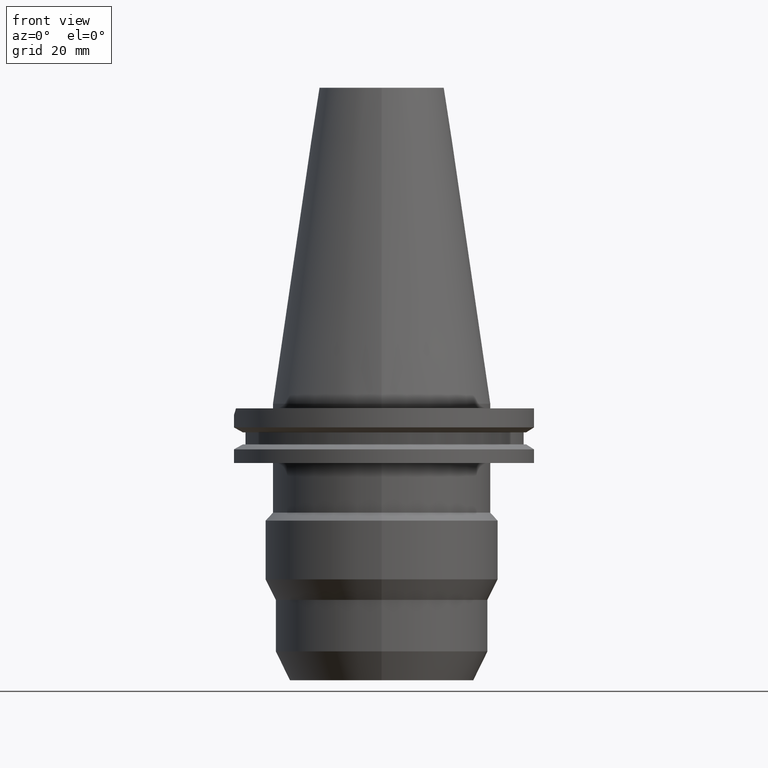
[diagram: clean part render]
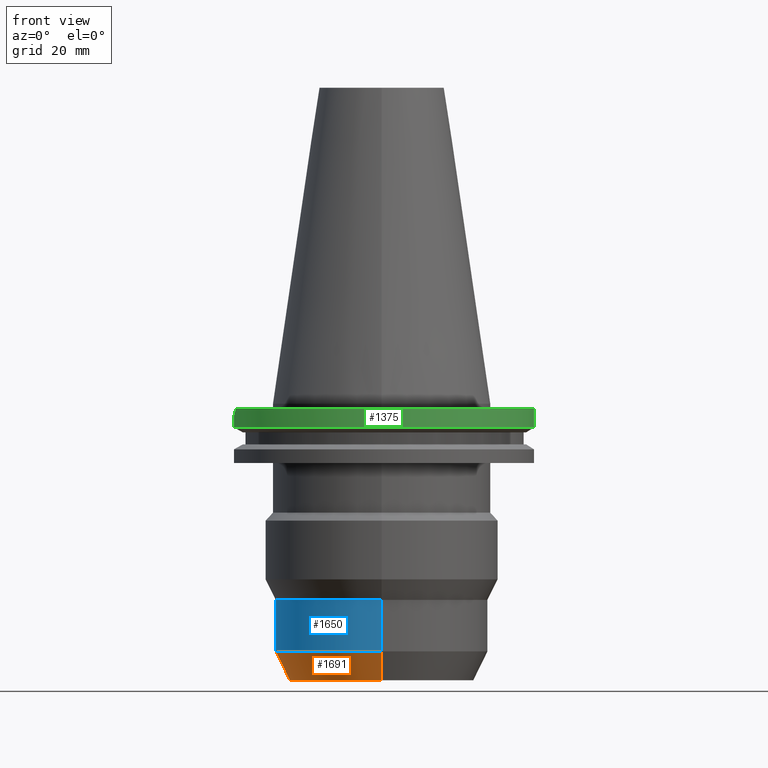
[diagram: same view with three faces highlighted in distinct colors, each labeled with its STEP entity id]
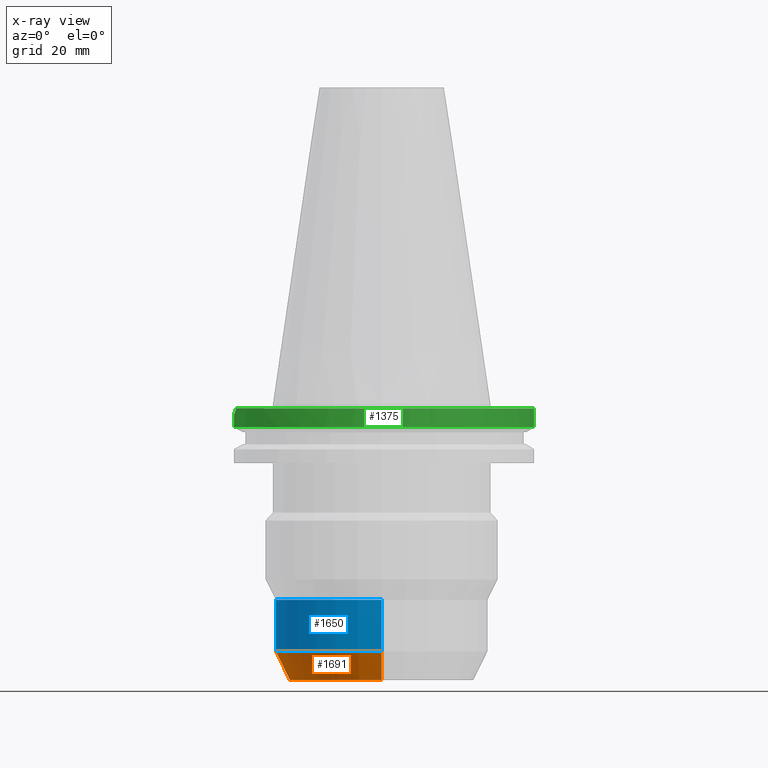
[diagram: x-ray of the same camera — body ghosted, the three highlighted faces saturated]
A machine part, front view with three faces highlighted in distinct colors.
The next image is the same camera in x-ray (body ghosted, the three faces saturated) — at least one of them is partly hidden behind the body in this view.
Their STEP definitions:

[orange] entity #1691 — the highlighted conical surface has half-angle 25 deg.
#678=DIRECTION('',(0.E0,-4.226182617408E-1,-9.063077870366E-1));
#679=VECTOR('',#678,1.023737114951E1);
#680=CARTESIAN_POINT('',(0.E0,3.4E1,-7.962179080842E1));
#681=LINE('',#680,#679);
#693=CARTESIAN_POINT('',(0.E0,0.E0,-7.962179080842E1));
#694=DIRECTION('',(0.E0,0.E0,1.E0));
#695=DIRECTION('',(0.E0,1.E0,0.E0));
#696=AXIS2_PLACEMENT_3D('',#693,#694,#695);
#701=DIRECTION('',(0.E0,4.226182617408E-1,-9.063077870366E-1));
#702=VECTOR('',#701,1.023737114951E1);
#703=CARTESIAN_POINT('',(0.E0,-3.4E1,-7.962179080842E1));
#704=LINE('',#703,#702);
#716=CARTESIAN_POINT('',(0.E0,0.E0,-8.89E1));
#717=DIRECTION('',(0.E0,0.E0,1.E0));
#718=DIRECTION('',(0.E0,1.E0,0.E0));
#719=AXIS2_PLACEMENT_3D('',#716,#717,#718);
#1066=CARTESIAN_POINT('',(0.E0,3.4E1,-7.962179080842E1));
#1067=VERTEX_POINT('',#1066);
#1068=CARTESIAN_POINT('',(0.E0,-3.4E1,-7.962179080842E1));
#1069=VERTEX_POINT('',#1068);
#1070=CARTESIAN_POINT('',(0.E0,2.96735E1,-8.89E1));
#1071=VERTEX_POINT('',#1070);
#1072=CARTESIAN_POINT('',(0.E0,-2.96735E1,-8.89E1));
#1073=VERTEX_POINT('',#1072);
#1679=CARTESIAN_POINT('',(0.E0,0.E0,-8.426089540421E1));
#1680=DIRECTION('',(0.E0,0.E0,1.E0));
#1681=DIRECTION('',(0.E0,1.E0,0.E0));
#1682=AXIS2_PLACEMENT_3D('',#1679,#1680,#1681);
#1683=CONICAL_SURFACE('',#1682,3.183675E1,2.5E1);
#1684=ORIENTED_EDGE('',*,*,#1669,.F.);
#1685=ORIENTED_EDGE('',*,*,#1646,.T.);
#1686=ORIENTED_EDGE('',*,*,#1673,.T.);
#1688=ORIENTED_EDGE('',*,*,#1687,.F.);
#1689=EDGE_LOOP('',(#1684,#1685,#1686,#1688));
#1690=FACE_OUTER_BOUND('',#1689,.F.);
#697=CIRCLE('',#696,3.4E1);
#720=CIRCLE('',#719,2.96735E1);
#1646=EDGE_CURVE('',#1067,#1069,#697,.T.);
#1669=EDGE_CURVE('',#1067,#1071,#681,.T.);
#1673=EDGE_CURVE('',#1069,#1073,#704,.T.);
#1687=EDGE_CURVE('',#1071,#1073,#720,.T.);
#1691=ADVANCED_FACE('',(#1690),#1683,.T.);

[blue] entity #1650 — the highlighted cylindrical surface (partial cylindrical patch) has radius 34 mm, axis along (0, 0, 1).
#656=CARTESIAN_POINT('',(0.E0,0.E0,-6.305309204344E1));
#657=DIRECTION('',(0.E0,0.E0,-1.E0));
#658=DIRECTION('',(0.E0,-1.E0,0.E0));
#659=AXIS2_PLACEMENT_3D('',#656,#657,#658);
#664=DIRECTION('',(0.E0,4.803080044725E-14,-1.E0));
#665=VECTOR('',#664,1.656869876498E1);
#666=CARTESIAN_POINT('',(0.E0,-3.4E1,-6.305309204344E1));
#667=LINE('',#666,#665);
#671=DIRECTION('',(0.E0,-4.803080044725E-14,-1.E0));
#672=VECTOR('',#671,1.656869876498E1);
#673=CARTESIAN_POINT('',(0.E0,3.4E1,-6.305309204344E1));
#674=LINE('',#673,#672);
#693=CARTESIAN_POINT('',(0.E0,0.E0,-7.962179080842E1));
#694=DIRECTION('',(0.E0,0.E0,1.E0));
#695=DIRECTION('',(0.E0,1.E0,0.E0));
#696=AXIS2_PLACEMENT_3D('',#693,#694,#695);
#1062=CARTESIAN_POINT('',(0.E0,3.4E1,-6.305309204344E1));
#1063=VERTEX_POINT('',#1062);
#1064=CARTESIAN_POINT('',(0.E0,-3.4E1,-6.305309204344E1));
#1065=VERTEX_POINT('',#1064);
#1066=CARTESIAN_POINT('',(0.E0,3.4E1,-7.962179080842E1));
#1067=VERTEX_POINT('',#1066);
#1068=CARTESIAN_POINT('',(0.E0,-3.4E1,-7.962179080842E1));
#1069=VERTEX_POINT('',#1068);
#1636=CARTESIAN_POINT('',(0.E0,0.E0,-9.8425E1));
#1637=DIRECTION('',(0.E0,0.E0,1.E0));
#1638=DIRECTION('',(0.E0,1.E0,0.E0));
#1639=AXIS2_PLACEMENT_3D('',#1636,#1637,#1638);
#1640=CYLINDRICAL_SURFACE('',#1639,3.4E1);
#1642=ORIENTED_EDGE('',*,*,#1641,.F.);
#1643=ORIENTED_EDGE('',*,*,#1631,.F.);
#1645=ORIENTED_EDGE('',*,*,#1644,.T.);
#1647=ORIENTED_EDGE('',*,*,#1646,.F.);
#1648=EDGE_LOOP('',(#1642,#1643,#1645,#1647));
#1649=FACE_OUTER_BOUND('',#1648,.F.);
#660=CIRCLE('',#659,3.4E1);
#697=CIRCLE('',#696,3.4E1);
#1631=EDGE_CURVE('',#1065,#1063,#660,.T.);
#1641=EDGE_CURVE('',#1063,#1067,#674,.T.);
#1644=EDGE_CURVE('',#1065,#1069,#667,.T.);
#1646=EDGE_CURVE('',#1067,#1069,#697,.T.);
#1650=ADVANCED_FACE('',(#1649),#1640,.T.);

[green] entity #1375 — the highlighted cylindrical surface (partial cylindrical patch) has radius 49.2125 mm, axis along (0, 0, 1).
#108=CARTESIAN_POINT('',(0.E0,0.E0,-1.5E0));
#109=DIRECTION('',(0.E0,0.E0,-1.E0));
#110=DIRECTION('',(-9.514024724200E-1,3.079502159004E-1,0.E0));
#111=AXIS2_PLACEMENT_3D('',#108,#109,#110);
#116=CARTESIAN_POINT('',(0.E0,0.E0,-1.5E0));
#117=DIRECTION('',(0.E0,0.E0,-1.E0));
#118=DIRECTION('',(0.E0,1.E0,0.E0));
#119=AXIS2_PLACEMENT_3D('',#116,#117,#118);
#124=CARTESIAN_POINT('',(0.E0,0.E0,-1.5E0));
#125=DIRECTION('',(0.E0,0.E0,-1.E0));
#126=DIRECTION('',(0.E0,-1.E0,0.E0));
#127=AXIS2_PLACEMENT_3D('',#124,#125,#126);
#246=CARTESIAN_POINT('',(-4.682089417397E1,-1.5155E1,-1.5E0));
#247=CARTESIAN_POINT('',(-4.705739607797E1,-1.442433483212E1,
-2.230665167880E0));
#248=CARTESIAN_POINT('',(-4.727588310257E1,-1.369098379593E1,
-2.964016204073E0));
#249=CARTESIAN_POINT('',(-4.747671146204E1,-1.2955E1,-3.699999999999E0));
#268=DIRECTION('',(2.604433028388E-13,3.505967538215E-14,1.E0));
#269=VECTOR('',#268,3.901333230925E0);
#270=CARTESIAN_POINT('',(-4.747671146204E1,-1.2955E1,-7.601333230925E0));
#271=LINE('',#270,#269);
#275=DIRECTION('',(-2.622645846769E-13,3.460435492264E-14,-1.E0));
#276=VECTOR('',#275,3.901333230925E0);
#277=CARTESIAN_POINT('',(-4.747671146204E1,1.2955E1,-3.7E0));
#278=LINE('',#277,#276);
#292=CARTESIAN_POINT('',(0.E0,0.E0,-7.601333230926E0));
#293=DIRECTION('',(0.E0,0.E0,1.E0));
#294=DIRECTION('',(-9.647287063661E-1,-2.632461264923E-1,0.E0));
#295=AXIS2_PLACEMENT_3D('',#292,#293,#294);
#300=CARTESIAN_POINT('',(0.E0,0.E0,-7.601333230926E0));
#301=DIRECTION('',(0.E0,0.E0,1.E0));
#302=DIRECTION('',(0.E0,-1.E0,0.E0));
#303=AXIS2_PLACEMENT_3D('',#300,#301,#302);
#308=CARTESIAN_POINT('',(0.E0,0.E0,-7.601333230926E0));
#309=DIRECTION('',(0.E0,0.E0,1.E0));
#310=DIRECTION('',(0.E0,1.E0,0.E0));
#311=AXIS2_PLACEMENT_3D('',#308,#309,#310);
#536=CARTESIAN_POINT('',(-4.747671146204E1,1.2955E1,-3.699999999999E0));
#537=CARTESIAN_POINT('',(-4.727588310257E1,1.369098379593E1,-2.964016204073E0));
#538=CARTESIAN_POINT('',(-4.705739607797E1,1.442433483212E1,-2.230665167880E0));
#539=CARTESIAN_POINT('',(-4.682089417397E1,1.5155E1,-1.5E0));
#1018=CARTESIAN_POINT('',(-4.682089417397E1,1.5155E1,-1.5E0));
#1019=VERTEX_POINT('',#1018);
#1020=CARTESIAN_POINT('',(0.E0,-4.92125E1,-1.5E0));
#1021=CARTESIAN_POINT('',(-4.682089417397E1,-1.5155E1,-1.5E0));
#1022=VERTEX_POINT('',#1020);
#1023=VERTEX_POINT('',#1021);
#1024=CARTESIAN_POINT('',(0.E0,4.92125E1,-1.5E0));
#1025=VERTEX_POINT('',#1024);
#1114=CARTESIAN_POINT('',(-4.747671146204E1,-1.2955E1,-3.7E0));
#1115=VERTEX_POINT('',#1114);
#1116=CARTESIAN_POINT('',(-4.747671146204E1,-1.2955E1,-7.601333230925E0));
#1117=VERTEX_POINT('',#1116);
#1126=CARTESIAN_POINT('',(1.205358612061E-14,4.92125E1,-7.601333230926E0));
#1127=CARTESIAN_POINT('',(-4.747671146204E1,1.2955E1,-7.601333230926E0));
#1128=VERTEX_POINT('',#1126);
#1129=VERTEX_POINT('',#1127);
#1130=CARTESIAN_POINT('',(-9.344575401929E-14,-4.92125E1,-7.601333230926E0));
#1131=VERTEX_POINT('',#1130);
#1132=VERTEX_POINT('',#536);
#1353=CARTESIAN_POINT('',(0.E0,0.E0,-9.8425E1));
#1354=DIRECTION('',(0.E0,0.E0,1.E0));
#1355=DIRECTION('',(0.E0,1.E0,0.E0));
#1356=AXIS2_PLACEMENT_3D('',#1353,#1354,#1355);
#1357=CYLINDRICAL_SURFACE('',#1356,4.92125E1);
#1359=ORIENTED_EDGE('',*,*,#1358,.F.);
#1361=ORIENTED_EDGE('',*,*,#1360,.F.);
#1363=ORIENTED_EDGE('',*,*,#1362,.F.);
#1364=ORIENTED_EDGE('',*,*,#1323,.T.);
#1365=ORIENTED_EDGE('',*,*,#1345,.F.);
#1366=ORIENTED_EDGE('',*,*,#1253,.F.);
#1367=ORIENTED_EDGE('',*,*,#1251,.F.);
#1368=ORIENTED_EDGE('',*,*,#1249,.F.);
#1370=ORIENTED_EDGE('',*,*,#1369,.F.);
#1372=ORIENTED_EDGE('',*,*,#1371,.T.);
#1373=EDGE_LOOP('',(#1359,#1361,#1363,#1364,#1365,#1366,#1367,#1368,#1370,
#1372));
#1374=FACE_OUTER_BOUND('',#1373,.F.);
#112=CIRCLE('',#111,4.92125E1);
#120=CIRCLE('',#119,4.92125E1);
#128=CIRCLE('',#127,4.92125E1);
#250=B_SPLINE_CURVE_WITH_KNOTS('',3,(#246,#247,#248,#249),.UNSPECIFIED.,.F.,.F.,
(4,4),(0.E0,1.E0),.UNSPECIFIED.);
#296=CIRCLE('',#295,4.92125E1);
#304=CIRCLE('',#303,4.92125E1);
#312=CIRCLE('',#311,4.92125E1);
#540=B_SPLINE_CURVE_WITH_KNOTS('',3,(#536,#537,#538,#539),.UNSPECIFIED.,.F.,.F.,
(4,4),(0.E0,1.E0),.UNSPECIFIED.);
#1249=EDGE_CURVE('',#1019,#1025,#112,.T.);
#1251=EDGE_CURVE('',#1025,#1022,#120,.T.);
#1253=EDGE_CURVE('',#1022,#1023,#128,.T.);
#1323=EDGE_CURVE('',#1117,#1115,#271,.T.);
#1345=EDGE_CURVE('',#1023,#1115,#250,.T.);
#1358=EDGE_CURVE('',#1128,#1129,#312,.T.);
#1360=EDGE_CURVE('',#1131,#1128,#304,.T.);
#1362=EDGE_CURVE('',#1117,#1131,#296,.T.);
#1369=EDGE_CURVE('',#1132,#1019,#540,.T.);
#1371=EDGE_CURVE('',#1132,#1129,#278,.T.);
#1375=ADVANCED_FACE('',(#1374),#1357,.T.);